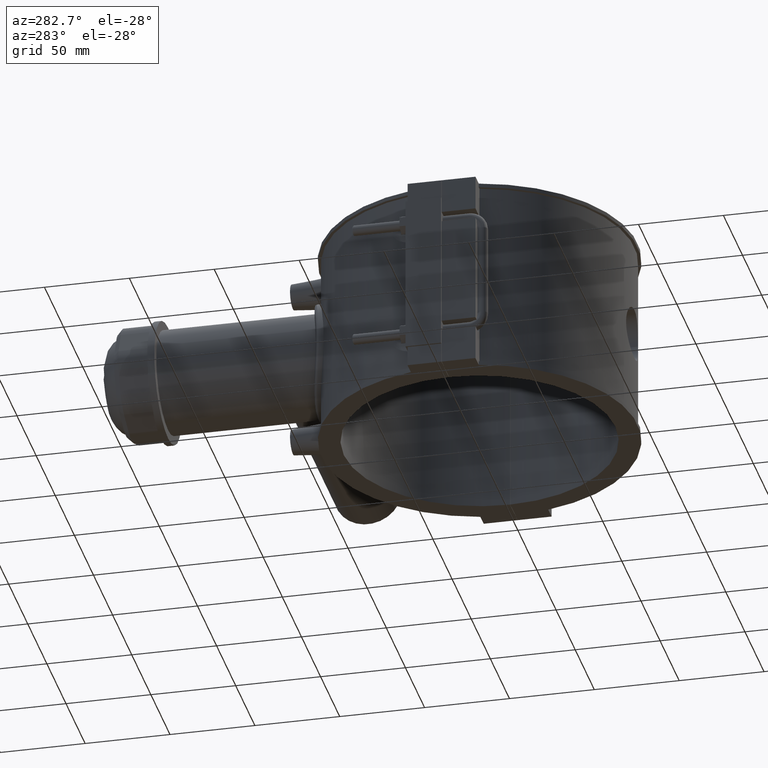
[diagram: clean part render]
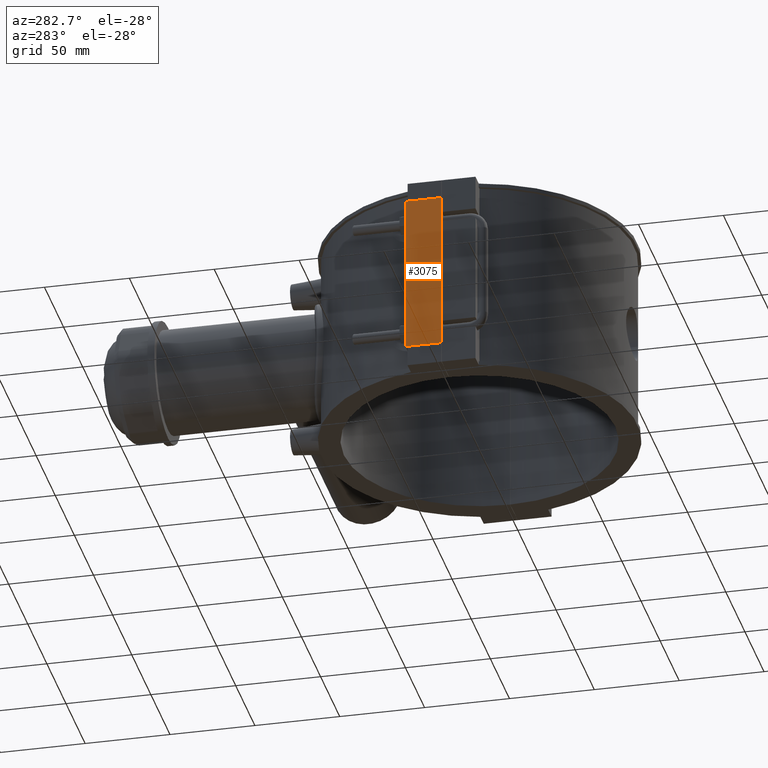
[diagram: same view with one face highlighted and labeled with its STEP entity id]
A machine part, auxiliary view. The second image highlights one B-rep face of the part: STEP entity #3075.
In plain terms, the highlighted planar face has unit normal (1, 0, 0).
Its self-contained STEP definition (entity closure, byte-faithful):
#147=LINE('',#5487,#426);
#150=LINE('',#5493,#429);
#153=LINE('',#5498,#432);
#166=LINE('',#5555,#445);
#426=VECTOR('',#3807,20.9500000000001);
#429=VECTOR('',#3812,20.9500000000001);
#432=VECTOR('',#3817,94.4);
#445=VECTOR('',#3836,94.4);
#631=PLANE('',#3310);
#928=FACE_OUTER_BOUND('',#1126,.T.);
#1126=EDGE_LOOP('',(#2413,#2414,#2415,#2416));
#1468=VERTEX_POINT('',#5484);
#1469=VERTEX_POINT('',#5486);
#1470=VERTEX_POINT('',#5490);
#1471=VERTEX_POINT('',#5492);
#1813=EDGE_CURVE('',#1469,#1468,#147,.T.);
#1816=EDGE_CURVE('',#1471,#1470,#150,.T.);
#1819=EDGE_CURVE('',#1469,#1470,#153,.T.);
#1838=EDGE_CURVE('',#1468,#1471,#166,.T.);
#2413=ORIENTED_EDGE('',*,*,#1819,.F.);
#2414=ORIENTED_EDGE('',*,*,#1813,.T.);
#2415=ORIENTED_EDGE('',*,*,#1838,.T.);
#2416=ORIENTED_EDGE('',*,*,#1816,.T.);
#3075=ADVANCED_FACE('',(#928),#631,.F.);
#3310=AXIS2_PLACEMENT_3D('',#5554,#3834,#3835);
#3807=DIRECTION('',(0.,-1.,0.));
#3812=DIRECTION('',(0.,1.,0.));
#3817=DIRECTION('',(0.,0.,1.));
#3834=DIRECTION('center_axis',(1.,0.,0.));
#3835=DIRECTION('ref_axis',(0.,1.,0.));
#3836=DIRECTION('',(0.,0.,1.));
#5484=CARTESIAN_POINT('',(-100.5,0.0500000000000078,-47.2));
#5486=CARTESIAN_POINT('',(-100.5,21.0000000000001,-47.2));
#5487=CARTESIAN_POINT('',(-100.5,0.0500000000000078,-47.2));
#5490=CARTESIAN_POINT('',(-100.5,21.0000000000001,47.2));
#5492=CARTESIAN_POINT('',(-100.5,0.0500000000000078,47.2));
#5493=CARTESIAN_POINT('',(-100.5,0.0500000000000078,47.2));
#5498=CARTESIAN_POINT('',(-100.5,21.0000000000001,0.));
#5554=CARTESIAN_POINT('Origin',(-100.5,0.0500000000000081,0.));
#5555=CARTESIAN_POINT('',(-100.5,0.0500000000000081,0.));